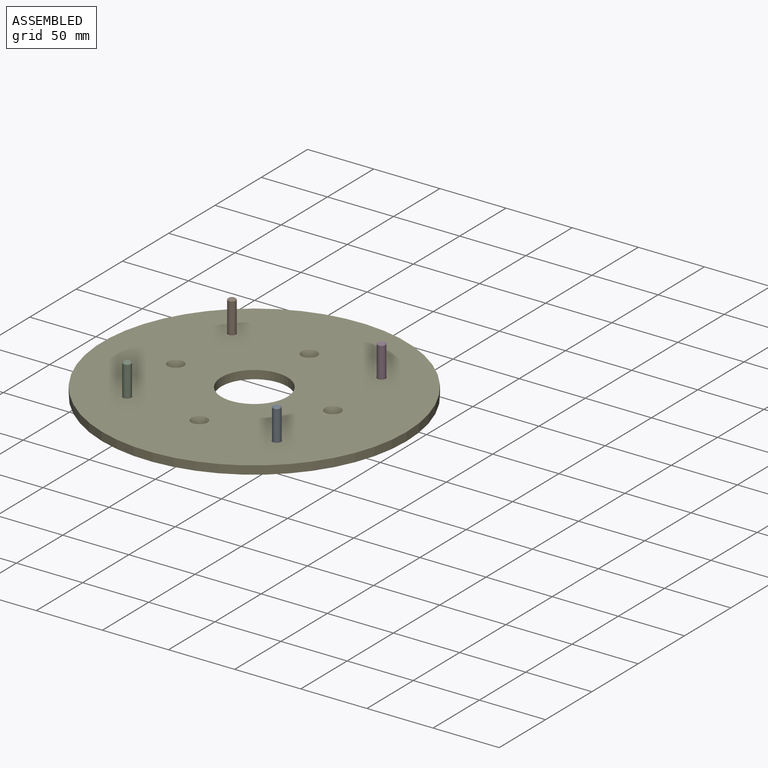
[diagram: assembled view]
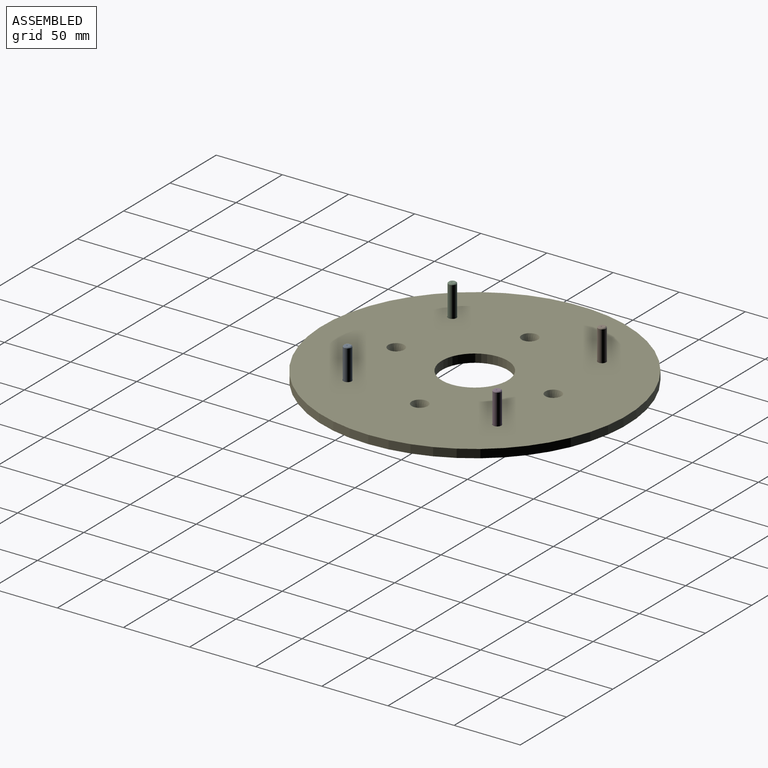
[diagram: assembled view, second angle]
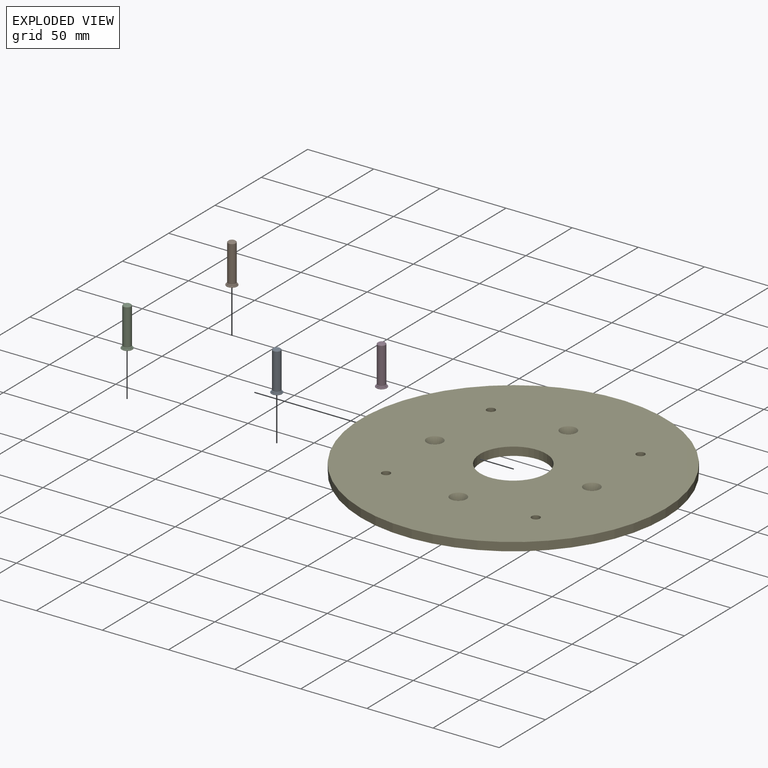
[diagram: exploded view]
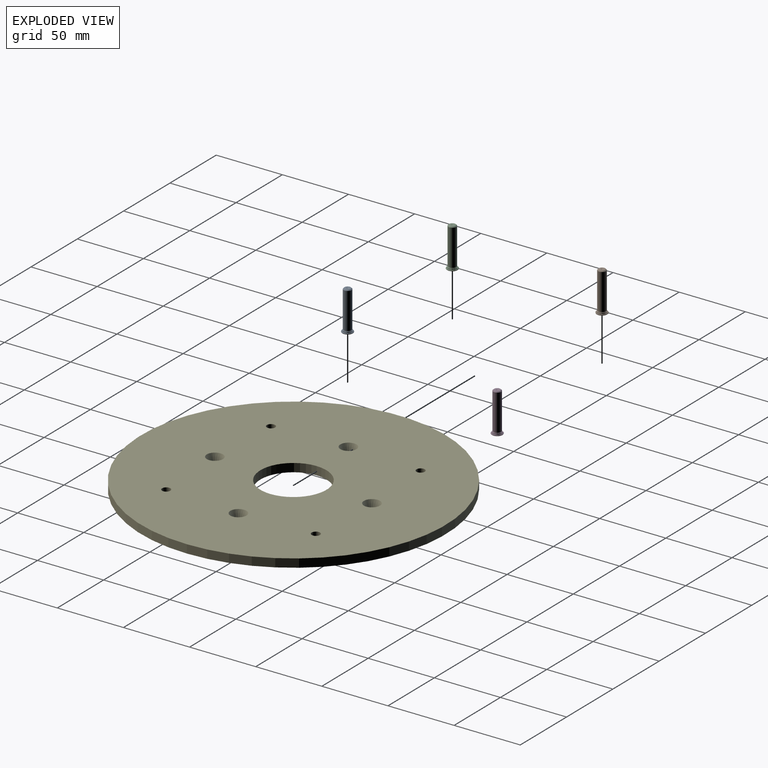
[diagram: exploded view, second angle]
ASSEMBLY  parts=5 mates=4
PART A: 13 faces, bbox 30x8.9x8.9 mm
  f0: cone r=0.45mm half-angle=60deg, axis (1,0,0), area 2.9mm2, adj f1
  f1: plane 4.77x4.77mm, normal (1,0,0), area 15.3mm2, adj f0,f2
  f2: cone r=2.69mm half-angle=45deg, axis (-1,0,0), area 14.7mm2, adj f1,f3
  f3: cylinder r=3mm len=27.39mm, axis (-1,0,0), area 516.2mm2, adj f2,f4
  f4: cone r=2.85mm half-angle=63.4deg, axis (1,0,0), area 6mm2, adj f3,f5
  f5: torus R=2.83mm, axis (-1,0,0), area 2.7mm2, adj f4,f6
  f6: cone r=2.85mm half-angle=63.4deg, axis (-1,0,0), area 6mm2, adj f5,f7
  f7: cylinder r=3mm len=6mm, axis (-1,0,0), area 6mm2, adj f6,f8
  f8: plane 6.97x6.97mm, normal (1,0,0), area 9.9mm2, adj f7,f9
  f9: cylinder r=3.48mm len=6.97mm, axis (1,0,0), area 9mm2, adj f8,f12
  f10: plane 7.38x7.38mm, normal (-1,0,0), area 42.8mm2, adj f11
  f11: torus R=3.69mm, axis (-1,0,0), area 32mm2, adj f10,f12
  f12: plane 7.38x7.38mm, normal (1,0,0), area 4.6mm2, adj f9,f11
PART B: same geometry as A
PART C: same geometry as A
PART D: same geometry as A
PART E: 16 faces, bbox 230x230x6.4 mm
  f0: cylinder r=3.15mm len=6.35mm, axis (0,0,1), area 125.7mm2, adj f11,f12
  f1: cylinder r=3.15mm len=6.35mm, axis (0,0,1), area 125.7mm2, adj f11,f12
  f2: cylinder r=3.15mm len=6.35mm, axis (0,0,1), area 125.7mm2, adj f11,f12
  f3: cylinder r=3.17mm len=6.35mm, axis (0,0,1), area 1.1mm2, adj f4,f12
  f4: cone r=3.17mm half-angle=25deg, axis (0,0,1), area 202.6mm2, adj f3,f11
  f5: cylinder r=3.17mm len=6.35mm, axis (0,0,1), area 1.1mm2, adj f6,f12
  f6: cone r=3.17mm half-angle=25deg, axis (0,0,1), area 202.6mm2, adj f5,f11
  f7: cylinder r=3.17mm len=6.35mm, axis (0,0,1), area 1.1mm2, adj f8,f12
  f8: cone r=3.17mm half-angle=25deg, axis (0,0,1), area 202.6mm2, adj f7,f11
  f9: cylinder r=25mm len=50mm, axis (0,0,-1), area 997.5mm2, adj f11,f12
  f10: cylinder r=115mm len=230mm, axis (0,0,-1), area 4588.3mm2, adj f11,f12
  f11: plane 230x230mm, normal (0,0,1), area 38990.2mm2, adj f0,f1,f2,f4,f6,f8,f9,f10
  f12: plane 230x230mm, normal (0,0,-1), area 39332.7mm2, adj f0,f1,f2,f3,f5,f7,f9,f10
  f13: cylinder r=3.17mm len=6.35mm, axis (0,0,1), area 1.1mm2, adj f12,f14
  f14: cone r=3.17mm half-angle=25deg, axis (0,0,1), area 202.6mm2, adj f11,f13
  f15: cylinder r=3.15mm len=6.35mm, axis (0,0,1), area 125.7mm2, adj f11,f12
PLACE A rot(axis=(0,-1,0),90deg) t=(-6.9,-80.44,12.66)mm
PLACE B rot(axis=(0,-1,0),90deg) t=(-120.03,32.7,12.66)mm
PLACE C rot(axis=(0,-1,0),90deg) t=(-120.03,-80.44,12.66)mm
PLACE D rot(axis=(0,-1,0),90deg) t=(-6.9,32.7,12.66)mm
PLACE E t=(-63.47,-23.87,12.66)mm
MATE cylindrical C.f2 <-> E.f1  axis (0,0,-1) through (-120.03,-80.44,12.66)mm
MATE cylindrical A.f2 <-> E.f0  axis (0,0,-1) through (-6.9,-80.44,12.66)mm
MATE cylindrical D.f2 <-> E.f15  axis (0,0,-1) through (-6.9,32.7,12.66)mm
MATE cylindrical B.f2 <-> E.f2  axis (0,0,-1) through (-120.03,32.7,12.66)mm
